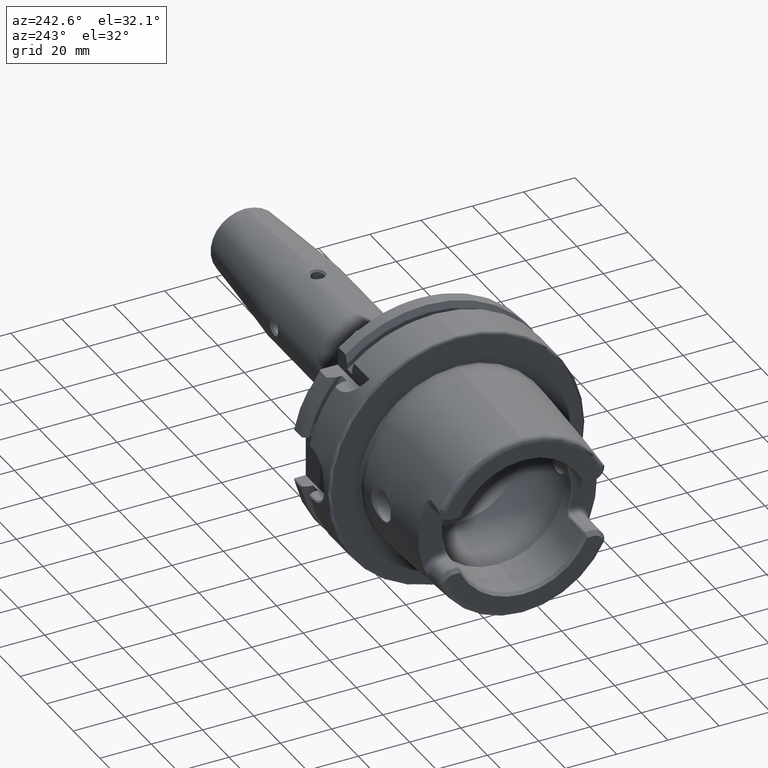
[diagram: clean part render]
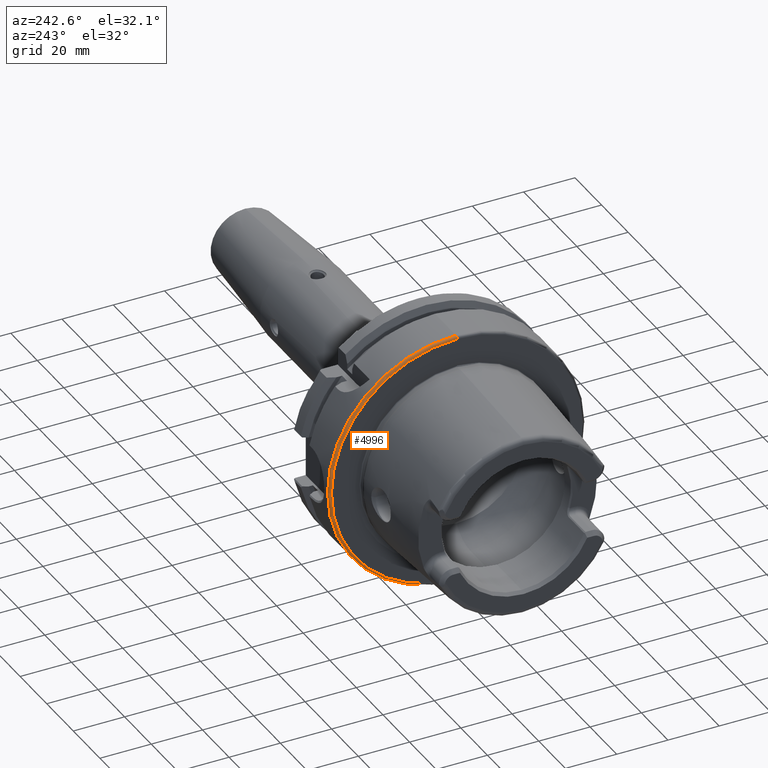
[diagram: same view with one face highlighted and labeled with its STEP entity id]
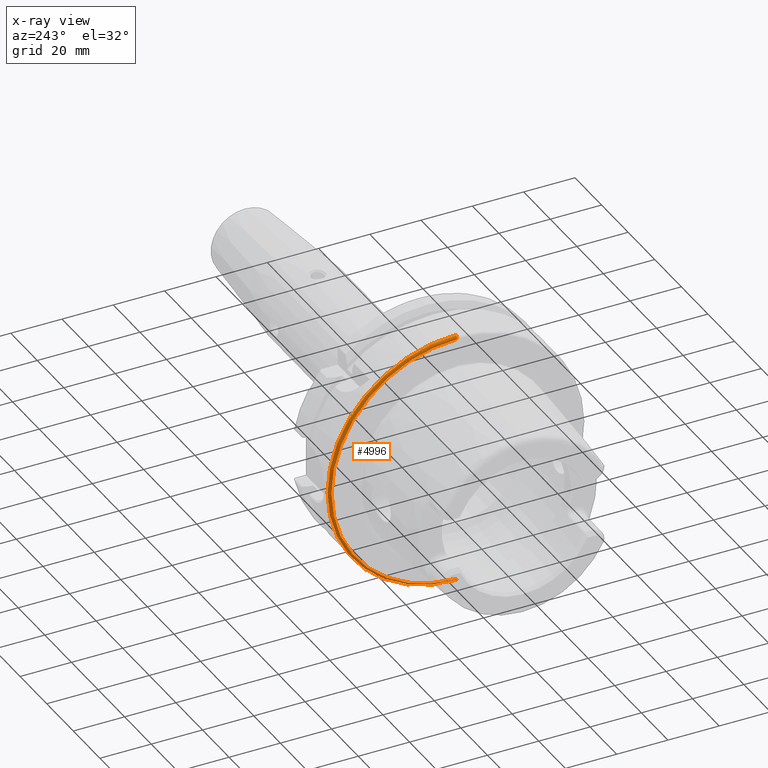
[diagram: x-ray of the same camera — body ghosted, the highlighted face saturated]
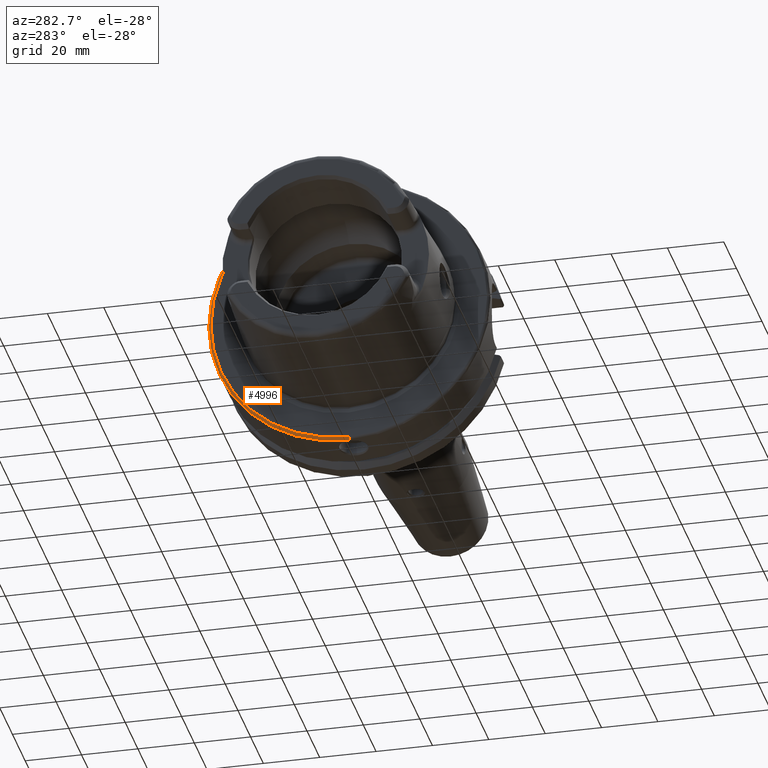
[diagram: same view with one face highlighted and labeled with its STEP entity id]
A machine part, auxiliary view. The second image highlights one B-rep face of the part: STEP entity #4996.
The next image is the same camera in x-ray: the body ghosted, the highlighted face saturated — about 2% of this face is hidden behind the body in this view.
A second angle (auxiliary view) of the same face is appended — the face is thin or edge-on in the first view.
In plain terms, the highlighted toroidal blend (fillet) surface has major radius 49 mm and minor (blend) radius 1 mm.
Its self-contained STEP definition (entity closure, byte-faithful):
#1267=CARTESIAN_POINT('',(0.E0,0.E0,0.E0));
#1268=DIRECTION('',(1.E0,0.E0,0.E0));
#1269=DIRECTION('',(0.E0,0.E0,-1.E0));
#1270=AXIS2_PLACEMENT_3D('',#1267,#1268,#1269);
#1272=CARTESIAN_POINT('',(0.E0,0.E0,0.E0));
#1273=DIRECTION('',(1.E0,0.E0,0.E0));
#1274=DIRECTION('',(0.E0,7.117313516455E-3,-9.999746716034E-1));
#1275=AXIS2_PLACEMENT_3D('',#1272,#1273,#1274);
#1292=CARTESIAN_POINT('',(1.E0,-4.085620730621E-14,-4.9E1));
#1293=DIRECTION('',(0.E0,1.E0,0.E0));
#1294=DIRECTION('',(0.E0,0.E0,-1.E0));
#1295=AXIS2_PLACEMENT_3D('',#1292,#1293,#1294);
#1297=CARTESIAN_POINT('',(1.E0,0.E0,0.E0));
#1298=DIRECTION('',(1.E0,0.E0,0.E0));
#1299=DIRECTION('',(0.E0,-3.120870936942E-14,-1.E0));
#1300=AXIS2_PLACEMENT_3D('',#1297,#1298,#1299);
#1302=CARTESIAN_POINT('',(1.E0,-1.310063169058E-14,4.9E1));
#1303=DIRECTION('',(0.E0,-1.E0,0.E0));
#1304=DIRECTION('',(0.E0,0.E0,1.E0));
#1305=AXIS2_PLACEMENT_3D('',#1302,#1303,#1304);
#3218=CARTESIAN_POINT('',(0.E0,9.947598300641E-14,-4.9E1));
#3220=VERTEX_POINT('',#3218);
#3221=CARTESIAN_POINT('',(0.E0,4.318551933581E-14,4.9E1));
#3222=VERTEX_POINT('',#3221);
#3223=CARTESIAN_POINT('',(0.E0,3.487483623063E-1,-4.899875890857E1));
#3224=VERTEX_POINT('',#3223);
#3225=CARTESIAN_POINT('',(1.E0,-1.336777910588E-14,5.E1));
#3226=VERTEX_POINT('',#3225);
#3227=CARTESIAN_POINT('',(1.E0,-1.560435468471E-12,-5.E1));
#3228=VERTEX_POINT('',#3227);
#4983=CARTESIAN_POINT('',(1.E0,0.E0,0.E0));
#4984=DIRECTION('',(1.E0,0.E0,0.E0));
#4985=DIRECTION('',(0.E0,-7.117313516455E-3,9.999746716034E-1));
#4986=AXIS2_PLACEMENT_3D('',#4983,#4984,#4985);
#4987=TOROIDAL_SURFACE('',#4986,4.9E1,1.E0);
#4988=ORIENTED_EDGE('',*,*,#4958,.F.);
#4989=ORIENTED_EDGE('',*,*,#4956,.F.);
#4990=ORIENTED_EDGE('',*,*,#4978,.F.);
#4992=ORIENTED_EDGE('',*,*,#4991,.T.);
#4993=ORIENTED_EDGE('',*,*,#4974,.T.);
#4994=EDGE_LOOP('',(#4988,#4989,#4990,#4992,#4993));
#4995=FACE_OUTER_BOUND('',#4994,.F.);
#4996=ADVANCED_FACE('',(#4995),#4987,.T.);
#1271=CIRCLE('',#1270,4.9E1);
#1276=CIRCLE('',#1275,4.9E1);
#1296=CIRCLE('',#1295,1.E0);
#1301=CIRCLE('',#1300,5.E1);
#1306=CIRCLE('',#1305,1.E0);
#4956=EDGE_CURVE('',#3220,#3224,#1271,.T.);
#4958=EDGE_CURVE('',#3224,#3222,#1276,.T.);
#4974=EDGE_CURVE('',#3226,#3222,#1306,.T.);
#4978=EDGE_CURVE('',#3228,#3220,#1296,.T.);
#4991=EDGE_CURVE('',#3228,#3226,#1301,.T.);